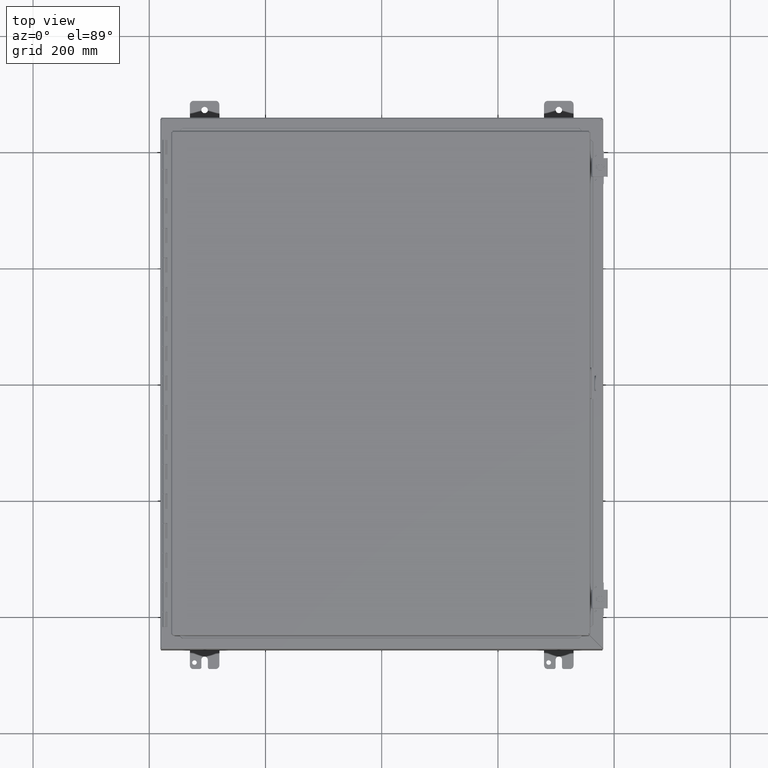
[diagram: clean part render]
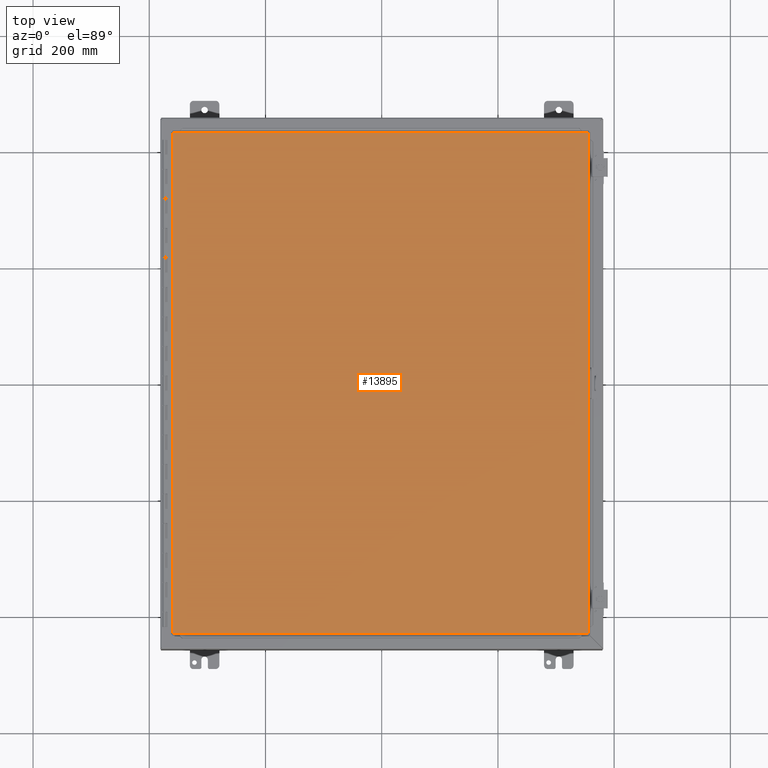
[diagram: same view with one face highlighted and labeled with its STEP entity id]
A machine part, top view. The second image highlights one B-rep face of the part: STEP entity #13895.
In plain terms, the highlighted planar face has unit normal (0, -0, -1).
Its self-contained STEP definition (entity closure, byte-faithful):
#13052=CARTESIAN_POINT('',(-14.08225,-16.988500000000005,-2.185478E-017));
#13053=VERTEX_POINT('',#13052);
#13064=CARTESIAN_POINT('',(14.08225,-16.988500000000002,-1.092739E-017));
#13065=VERTEX_POINT('',#13064);
#13066=CARTESIAN_POINT('',(14.08225,-16.988500000000005,0.0));
#13067=DIRECTION('',(-1.0,0.0,0.0));
#13068=VECTOR('',#13067,28.1645);
#13069=LINE('',#13066,#13068);
#13070=EDGE_CURVE('',#13065,#13053,#13069,.T.);
#13186=CARTESIAN_POINT('',(-14.082250000000005,16.988500000000005,-2.185478E-017));
#13187=VERTEX_POINT('',#13186);
#13285=CARTESIAN_POINT('',(14.08225,16.988500000000005,-1.092739E-017));
#13286=VERTEX_POINT('',#13285);
#13297=CARTESIAN_POINT('',(-14.082250000000005,16.988500000000005,0.0));
#13298=DIRECTION('',(1.0,0.0,0.0));
#13299=VECTOR('',#13298,28.164500000000004);
#13300=LINE('',#13297,#13299);
#13301=EDGE_CURVE('',#13187,#13286,#13300,.T.);
#13606=CARTESIAN_POINT('',(-14.082250000000002,-16.988500000000009,0.0));
#13607=DIRECTION('',(0.0,1.0,0.0));
#13608=VECTOR('',#13607,33.977000000000011);
#13609=LINE('',#13606,#13608);
#13610=EDGE_CURVE('',#13053,#13187,#13609,.T.);
#13700=CARTESIAN_POINT('',(14.08225,16.988500000000005,0.0));
#13701=DIRECTION('',(0.0,-1.0,0.0));
#13702=VECTOR('',#13701,33.977000000000004);
#13703=LINE('',#13700,#13702);
#13704=EDGE_CURVE('',#13286,#13065,#13703,.T.);
#13884=CARTESIAN_POINT('',(-6.993531E-016,9.772905E-016,0.0));
#13885=DIRECTION('',(0.0,0.0,1.0));
#13886=DIRECTION('',(1.0,0.0,0.0));
#13887=AXIS2_PLACEMENT_3D('',#13884,#13885,#13886);
#13888=PLANE('',#13887);
#13889=ORIENTED_EDGE('',*,*,#13610,.T.);
#13890=ORIENTED_EDGE('',*,*,#13301,.T.);
#13891=ORIENTED_EDGE('',*,*,#13704,.T.);
#13892=ORIENTED_EDGE('',*,*,#13070,.T.);
#13893=EDGE_LOOP('',(#13889,#13890,#13891,#13892));
#13894=FACE_OUTER_BOUND('',#13893,.T.);
#13895=ADVANCED_FACE('',(#13894),#13888,.F.);